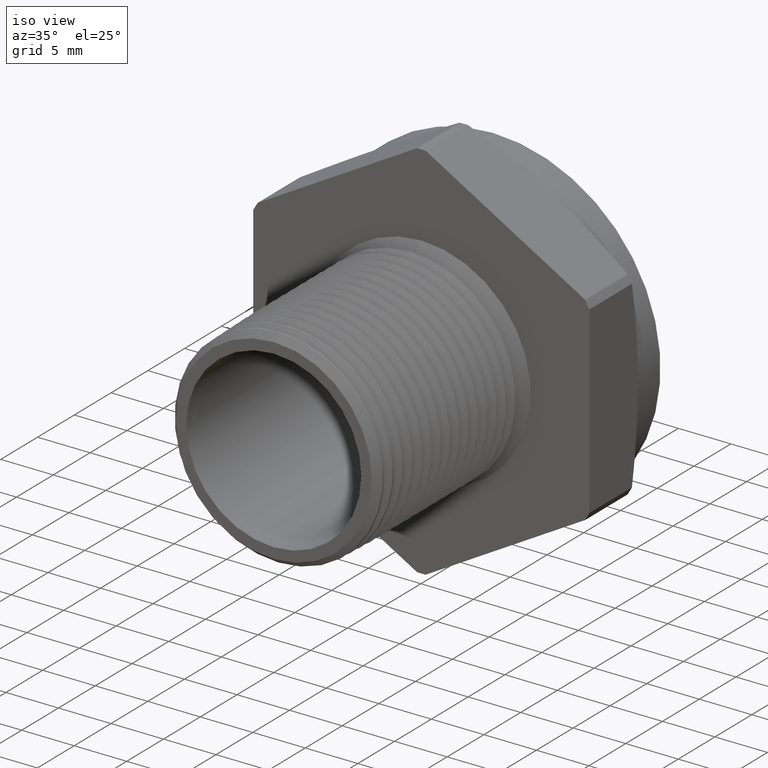
[diagram: clean part render]
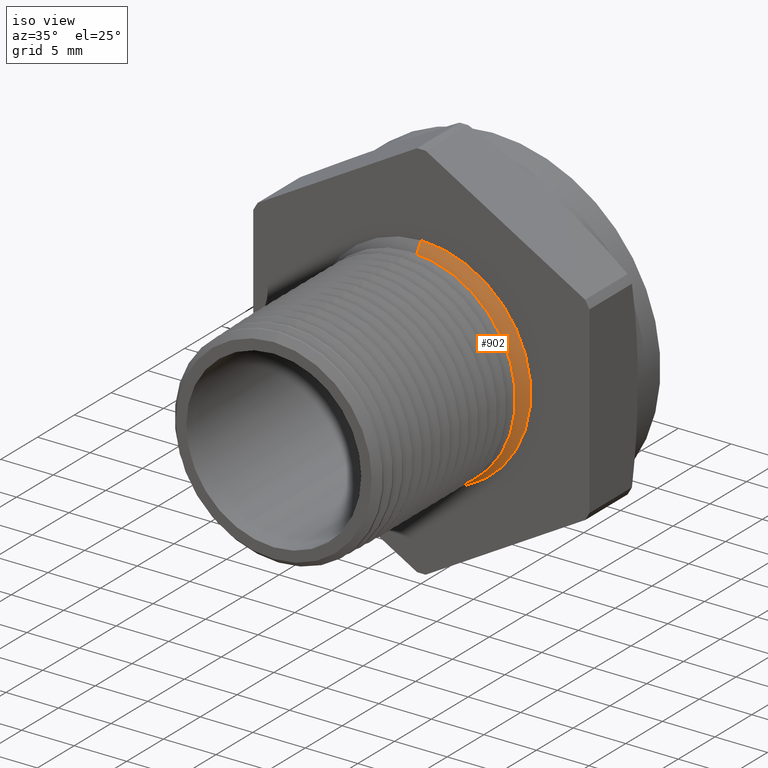
[diagram: same view with one face highlighted and labeled with its STEP entity id]
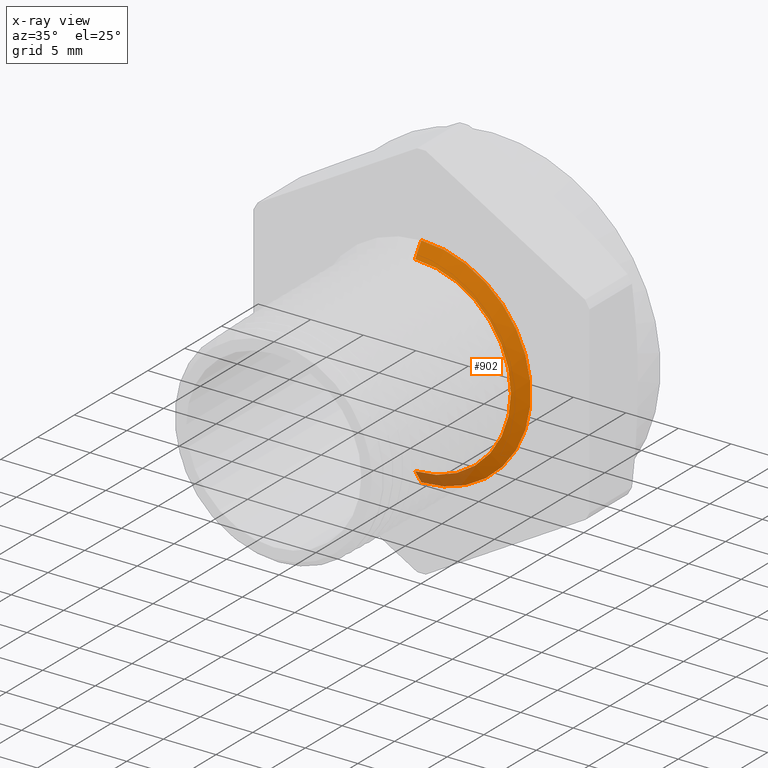
[diagram: x-ray of the same camera — body ghosted, the highlighted face saturated]
A machine part, iso view. The second image highlights one B-rep face of the part: STEP entity #902.
The next image is the same camera in x-ray: the body ghosted, the highlighted face saturated — about 10% of this face is hidden behind the body in this view.
In plain terms, the highlighted conical surface has half-angle 56.5 deg.
Its self-contained STEP definition (entity closure, byte-faithful):
#840 = VERTEX_POINT ( 'NONE', #2477 ) ;
#841 = VERTEX_POINT ( 'NONE', #2476 ) ;
#842 = ORIENTED_EDGE ( 'NONE', *, *, #843, .T. ) ;
#843 = EDGE_CURVE ( 'NONE', #840, #844, #2475, .T. ) ;
#844 = VERTEX_POINT ( 'NONE', #2471 ) ;
#885 = EDGE_CURVE ( 'NONE', #844, #953, #2519, .T. ) ;
#902 = ADVANCED_FACE ( 'NONE', ( #2550 ), #2549, .T. ) ;
#904 = EDGE_LOOP ( 'NONE', ( #910, #842, #952, #961 ) ) ;
#910 = ORIENTED_EDGE ( 'NONE', *, *, #911, .F. ) ;
#911 = EDGE_CURVE ( 'NONE', #840, #841, #2597, .T. ) ;
#952 = ORIENTED_EDGE ( 'NONE', *, *, #885, .T. ) ;
#953 = VERTEX_POINT ( 'NONE', #2685 ) ;
#957 = EDGE_CURVE ( 'NONE', #841, #953, #2680, .T. ) ;
#961 = ORIENTED_EDGE ( 'NONE', *, *, #957, .F. ) ;
#2471 = CARTESIAN_POINT ( 'NONE',  ( 5.021051876504148100E-017, 0.7900000000000003700, -0.4099999999999999800 ) ) ;
#2472 = DIRECTION ( 'NONE',  ( 1.021215602848915900E-016, 0.5519369853120595900, -0.8338858220671672200 ) ) ;
#2473 = VECTOR ( 'NONE', #2472, 39.37007874015748100 ) ;
#2474 = CARTESIAN_POINT ( 'NONE',  ( 4.397714847701813200E-017, 0.7563104676866718700, -0.3591006689245971300 ) ) ;
#2475 = LINE ( 'NONE', #2474, #2473 ) ;
#2476 = CARTESIAN_POINT ( 'NONE',  ( 4.616113702380717100E-017, 0.7563104676866718700, 0.3591006689245971300 ) ) ;
#2477 = CARTESIAN_POINT ( 'NONE',  ( 0.0000000000000000000, 0.7563104676866718700, -0.3591006689245971300 ) ) ;
#2515 = DIRECTION ( 'NONE',  ( 0.0000000000000000000, 0.0000000000000000000, -1.000000000000000000 ) ) ;
#2516 = DIRECTION ( 'NONE',  ( -0.0000000000000000000, -1.000000000000000000, -0.0000000000000000000 ) ) ;
#2517 = CARTESIAN_POINT ( 'NONE',  ( 0.0000000000000000000, 0.7900000000000003700, 0.0000000000000000000 ) ) ;
#2518 = AXIS2_PLACEMENT_3D ( 'NONE', #2517, #2516, #2515 ) ;
#2519 = CIRCLE ( 'NONE', #2518, 0.4099999999999999800 ) ;
#2546 = CARTESIAN_POINT ( 'NONE',  ( 0.0000000000000000000, 0.7563104676866718700, 0.0000000000000000000 ) ) ;
#2547 = AXIS2_PLACEMENT_3D ( 'NONE', #2546, #2607, #2606 ) ;
#2549 = CONICAL_SURFACE ( 'NONE', #2547, 0.3591006689245971300, 0.9861110273767945700 ) ;
#2550 = FACE_OUTER_BOUND ( 'NONE', #904, .T. ) ;
#2589 = DIRECTION ( 'NONE',  ( 0.0000000000000000000, 0.0000000000000000000, -1.000000000000000000 ) ) ;
#2590 = DIRECTION ( 'NONE',  ( -0.0000000000000000000, -1.000000000000000000, -0.0000000000000000000 ) ) ;
#2591 = CARTESIAN_POINT ( 'NONE',  ( 0.0000000000000000000, 0.7563104676866718700, 0.0000000000000000000 ) ) ;
#2592 = AXIS2_PLACEMENT_3D ( 'NONE', #2591, #2590, #2589 ) ;
#2597 = CIRCLE ( 'NONE', #2592, 0.3591006689245971300 ) ;
#2606 = DIRECTION ( 'NONE',  ( 0.0000000000000000000, 0.0000000000000000000, 1.000000000000000000 ) ) ;
#2607 = DIRECTION ( 'NONE',  ( 0.0000000000000000000, 1.000000000000000000, 0.0000000000000000000 ) ) ;
#2677 = DIRECTION ( 'NONE',  ( 0.0000000000000000000, 0.5519369853120595900, 0.8338858220671672200 ) ) ;
#2678 = VECTOR ( 'NONE', #2677, 39.37007874015748100 ) ;
#2679 = CARTESIAN_POINT ( 'NONE',  ( 0.0000000000000000000, 0.7563104676866718700, 0.3591006689245971300 ) ) ;
#2680 = LINE ( 'NONE', #2679, #2678 ) ;
#2685 = CARTESIAN_POINT ( 'NONE',  ( 0.0000000000000000000, 0.7900000000000003700, 0.4099999999999999800 ) ) ;